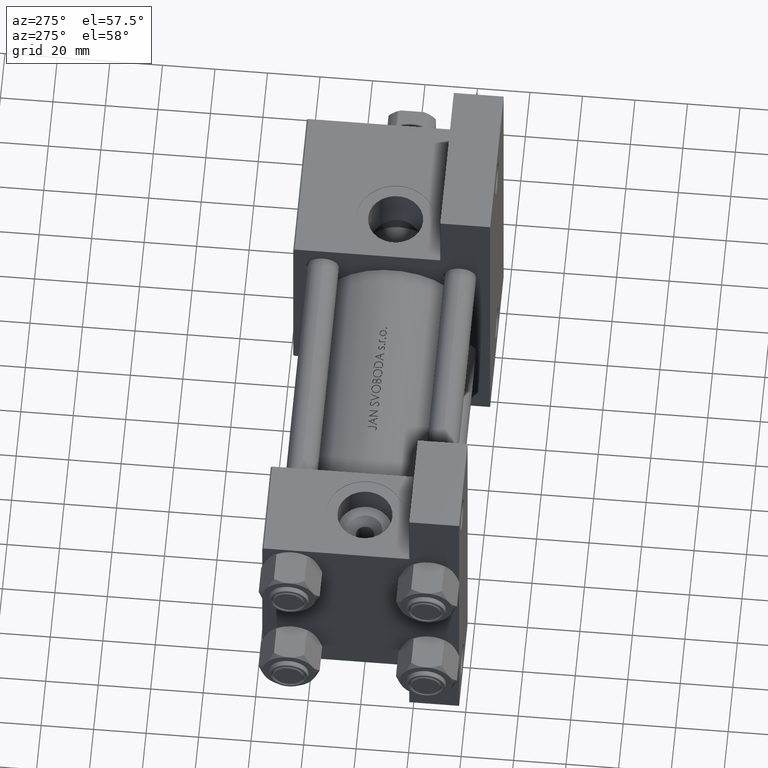
[diagram: clean part render]
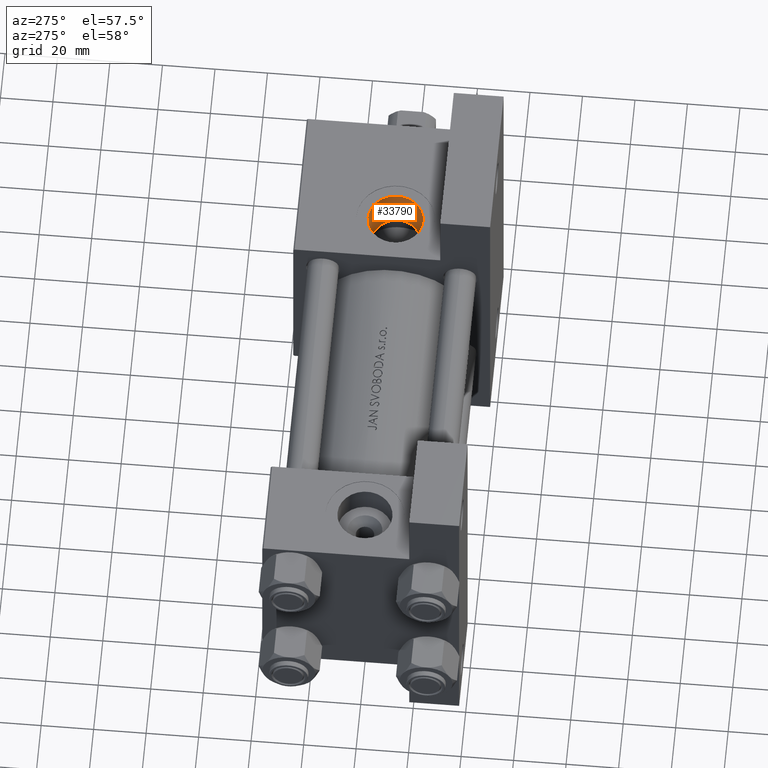
[diagram: same view with one face highlighted and labeled with its STEP entity id]
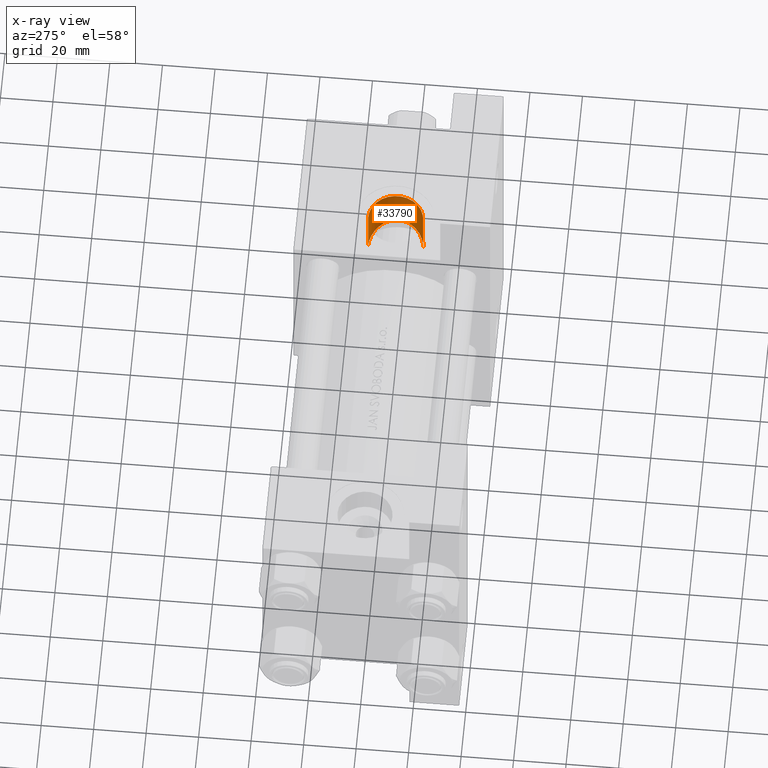
[diagram: x-ray of the same camera — body ghosted, the highlighted face saturated]
A machine part, auxiliary view. The second image highlights one B-rep face of the part: STEP entity #33790.
The next image is the same camera in x-ray: the body ghosted, the highlighted face saturated — about 0% of this face is hidden behind the body in this view.
In plain terms, the highlighted cylindrical surface (edge-blend (fillet) strip) has radius 10.48 mm, axis along (-0, -0, 1).
Its self-contained STEP definition (entity closure, byte-faithful):
#539 = CARTESIAN_POINT ( 'NONE',  ( 160.2943842801270478, -19.29805340160766747, 6.441284550439725365 ) ) ;
#1131 = VERTEX_POINT ( 'NONE', #14763 ) ;
#1438 = VERTEX_POINT ( 'NONE', #7166 ) ;
#1483 = CARTESIAN_POINT ( 'NONE',  ( 158.9416544847751993, -19.13207627753017093, -7.880695095096321268 ) ) ;
#2390 = EDGE_CURVE ( 'NONE', #10221, #1131, #9212, .T. ) ;
#2736 = VERTEX_POINT ( 'NONE', #40762 ) ;
#3141 = EDGE_CURVE ( 'NONE', #10221, #1438, #27462, .T. ) ;
#3786 = CARTESIAN_POINT ( 'NONE',  ( 158.9208345979154444, -18.70786800614511236, 7.898040897294844598 ) ) ;
#4030 = CARTESIAN_POINT ( 'NONE',  ( 161.3662177968320179, -19.82832408839749760, 4.713768309937338863 ) ) ;
#4521 = CARTESIAN_POINT ( 'NONE',  ( 152.3470210746793043, -17.31154528053460595, 10.47999999999999510 ) ) ;
#4762 = CARTESIAN_POINT ( 'NONE',  ( 160.9026386617618414, -19.87300753805846654, -5.539771893847126094 ) ) ;
#6123 = CIRCLE ( 'NONE', #33988, 10.47999999999998622 ) ;
#7166 = CARTESIAN_POINT ( 'NONE',  ( 152.0000000000000284, -17.90669148670408362, -10.47999999999998089 ) ) ;
#7837 = EDGE_CURVE ( 'NONE', #2736, #1131, #6123, .T. ) ;
#8492 = DIRECTION ( 'NONE',  ( -0.000000000000000000, -1.000000000000000000, -8.673617379884036705E-17 ) ) ;
#8740 = CARTESIAN_POINT ( 'NONE',  ( 152.3524141148301112, -17.90669148670408362, -10.47999999999997556 ) ) ;
#9212 = LINE ( 'NONE', #34897, #32180 ) ;
#9467 = CARTESIAN_POINT ( 'NONE',  ( 161.0783182432222134, -19.94519646484593167, -5.247152792081113404 ) ) ;
#10221 = VERTEX_POINT ( 'NONE', #22684 ) ;
#11022 = CARTESIAN_POINT ( 'NONE',  ( 157.2787600379286346, -18.12953982762253347, 9.078379935655647159 ) ) ;
#11260 = CARTESIAN_POINT ( 'NONE',  ( 162.3852102648228879, -20.41012014665353291, 1.448585321857994712 ) ) ;
#11995 = CARTESIAN_POINT ( 'NONE',  ( 162.1488622720015655, -20.39261420473474473, -2.705221023230776289 ) ) ;
#12233 = CARTESIAN_POINT ( 'NONE',  ( 156.6885837709134819, -18.47081169218747831, -9.397559365377063045 ) ) ;
#14763 = CARTESIAN_POINT ( 'NONE',  ( 152.0000000000000284, -37.29999999999999716, 10.47999999999998977 ) ) ;
#14978 = FACE_OUTER_BOUND ( 'NONE', #17946, .T. ) ;
#14998 = CARTESIAN_POINT ( 'NONE',  ( 160.8632463434475710, -19.57285682509593272, 5.602446212762891342 ) ) ;
#15486 = CARTESIAN_POINT ( 'NONE',  ( 152.6954312938289604, -17.32248566803110990, 10.46281023584331393 ) ) ;
#15733 = CARTESIAN_POINT ( 'NONE',  ( 161.5136165929028209, -19.90621515629138827, 4.408684660160838042 ) ) ;
#15946 = CYLINDRICAL_SURFACE ( 'NONE', #28412, 10.47999999999998622 ) ;
#16746 = LINE ( 'NONE', #36429, #48058 ) ;
#17946 = EDGE_LOOP ( 'NONE', ( #32492, #28918, #35444, #27444 ) ) ;
#18314 = DIRECTION ( 'NONE',  ( 0.000000000000000000, 0.000000000000000000, -1.000000000000000000 ) ) ;
#18984 = CARTESIAN_POINT ( 'NONE',  ( 162.4015008588858962, -20.48626732390679805, -1.327331865308766901 ) ) ;
#19223 = CARTESIAN_POINT ( 'NONE',  ( 161.9112922687107528, -20.12166452589491428, 3.472274471029884957 ) ) ;
#19720 = CARTESIAN_POINT ( 'NONE',  ( 161.9485359727863738, -20.30891902702526153, -3.366903607565236989 ) ) ;
#21311 = DIRECTION ( 'NONE',  ( 0.000000000000000000, -1.000000000000000000, -8.673617379884036705E-17 ) ) ;
#22013 = EDGE_CURVE ( 'NONE', #1438, #2736, #16746, .T. ) ;
#22684 = CARTESIAN_POINT ( 'NONE',  ( 152.0000000000000284, -17.31154528053461306, 10.47999999999999154 ) ) ;
#23455 = CARTESIAN_POINT ( 'NONE',  ( 162.4583245133797504, -20.46430137750835954, 0.7579182357777466406 ) ) ;
#23923 = CARTESIAN_POINT ( 'NONE',  ( 160.5247630629396838, -19.72096722719661344, -6.105281524917115732 ) ) ;
#24155 = CARTESIAN_POINT ( 'NONE',  ( 159.6611621740133842, -19.38999619374664363, -7.159076384942104632 ) ) ;
#24399 = CARTESIAN_POINT ( 'NONE',  ( 161.5516556862485800, -20.14238090880650134, -4.326202217588882348 ) ) ;
#24783 = CARTESIAN_POINT ( 'NONE',  ( 152.0000000000000284, -37.29999999999999716, 3.486794186713383443E-15 ) ) ;
#26455 = CARTESIAN_POINT ( 'NONE',  ( 162.4776551375226177, -20.48265569949337461, 0.4117595292702391774 ) ) ;
#26952 = CARTESIAN_POINT ( 'NONE',  ( 161.0415136392023783, -19.66186875787549226, 5.310054482731721315 ) ) ;
#27420 = CARTESIAN_POINT ( 'NONE',  ( 154.7750123670571440, -18.09812027575558702, -10.12979723076933425 ) ) ;
#27444 = ORIENTED_EDGE ( 'NONE', *, *, #7837, .T. ) ;
#27462 = B_SPLINE_CURVE_WITH_KNOTS ( 'NONE', 3,
 ( #38641, #4521, #15486, #45135, #45623, #34659, #33924, #42129, #11022, #29945, #3786, #38387, #539, #14998, #26952, #4030, #15733, #19223, #45381, #30928, #11260, #23455, #26455, #41633, #46112, #18984, #34170, #11995, #19720, #24399, #27893, #9467, #4762, #23923, #31157, #35848, #24155, #1483, #39357, #43328, #12233, #35375, #27420, #39604, #46833, #35139, #8740, #39119 ),
 .UNSPECIFIED., .F., .F.,
 ( 4, 2, 2, 2, 2, 2, 2, 2, 2, 2, 2, 2, 2, 2, 2, 2, 2, 2, 2, 2, 2, 2, 2, 4 ),
 ( 0.03337172289375579803, 0.03441233523662728944, 0.03545294757949878778, 0.03753417226524177058, 0.03961539695098476033, 0.04169662163672774313, 0.04377784632247073981, 0.04481845866534223122, 0.04585907100821372262, 0.04794029569395671930, 0.04898090803682821071, 0.05002152037969970211, 0.05106213272257120045, 0.05210274506544269879, 0.05418396975118568160, 0.05522458209405717994, 0.05626519443692867134, 0.05730580677980016968, 0.05834641912267166108, 0.06042764380841469940, 0.06250886849415773772, 0.06459009317990078991, 0.06563070552277235070, 0.06667131786564391149 ),
 .UNSPECIFIED. ) ;
#27893 = CARTESIAN_POINT ( 'NONE',  ( 161.4025389929008725, -20.07976061505709708, -4.641199740976985844 ) ) ;
#28412 = AXIS2_PLACEMENT_3D ( 'NONE', #31137, #33902, #46325 ) ;
#28918 = ORIENTED_EDGE ( 'NONE', *, *, #3141, .T. ) ;
#29945 = CARTESIAN_POINT ( 'NONE',  ( 158.3953719826940016, -18.50579674927558571, 8.329556230503516900 ) ) ;
#30928 = CARTESIAN_POINT ( 'NONE',  ( 162.3311065042815642, -20.37409322011633606, 1.794586109409245456 ) ) ;
#31137 = CARTESIAN_POINT ( 'NONE',  ( 152.0000000000000284, 37.50100000000000477, 9.974746723040443104E-15 ) ) ;
#31157 = CARTESIAN_POINT ( 'NONE',  ( 160.3225662003738421, -19.64111042044597966, -6.378170050295204341 ) ) ;
#32180 = VECTOR ( 'NONE', #8492, 1000.000000000000000 ) ;
#32492 = ORIENTED_EDGE ( 'NONE', *, *, #2390, .F. ) ;
#32691 = DIRECTION ( 'NONE',  ( -0.000000000000000000, -1.000000000000000000, -8.673617379884036705E-17 ) ) ;
#33790 = ADVANCED_FACE ( 'NONE', ( #14978 ), #15946, .F. ) ;
#33902 = DIRECTION ( 'NONE',  ( -0.000000000000000000, -1.000000000000000000, -8.673617379884036705E-17 ) ) ;
#33924 = CARTESIAN_POINT ( 'NONE',  ( 155.4159050215026525, -17.65012615064442869, 9.931528811289364711 ) ) ;
#33988 = AXIS2_PLACEMENT_3D ( 'NONE', #24783, #21311, #18314 ) ;
#34170 = CARTESIAN_POINT ( 'NONE',  ( 162.3507038963578850, -20.46901633175582447, -1.677836523642098010 ) ) ;
#34659 = CARTESIAN_POINT ( 'NONE',  ( 154.7588417203788538, -17.52693762274574851, 10.13402779325157077 ) ) ;
#34897 = CARTESIAN_POINT ( 'NONE',  ( 152.0000000000000284, 37.50100000000000477, 10.47999999999999687 ) ) ;
#35139 = CARTESIAN_POINT ( 'NONE',  ( 152.7047145583875363, -17.91665127801143953, -10.46219065497899692 ) ) ;
#35375 = CARTESIAN_POINT ( 'NONE',  ( 155.4291236246859000, -18.20648317701849095, -9.926633415679276595 ) ) ;
#35444 = ORIENTED_EDGE ( 'NONE', *, *, #22013, .T. ) ;
#35848 = CARTESIAN_POINT ( 'NONE',  ( 159.8913372837819793, -19.47582360453931116, -6.904560610471913940 ) ) ;
#36429 = CARTESIAN_POINT ( 'NONE',  ( 152.0000000000000284, 37.50100000000000477, -10.47999999999997556 ) ) ;
#38387 = CARTESIAN_POINT ( 'NONE',  ( 159.8679744497729303, -19.10325731143032968, 6.954996736502839561 ) ) ;
#38641 = CARTESIAN_POINT ( 'NONE',  ( 152.0000000000000284, -17.31154528053461306, 10.47999999999999154 ) ) ;
#39119 = CARTESIAN_POINT ( 'NONE',  ( 152.0000000000000284, -17.90669148670408362, -10.47999999999998089 ) ) ;
#39357 = CARTESIAN_POINT ( 'NONE',  ( 158.4217440813015401, -18.95863385658994815, -8.309672003124298101 ) ) ;
#39604 = CARTESIAN_POINT ( 'NONE',  ( 153.7534701870718834, -17.98521153983802634, -10.33810977386607100 ) ) ;
#40762 = CARTESIAN_POINT ( 'NONE',  ( 152.0000000000000284, -37.29999999999999716, -10.47999999999998266 ) ) ;
#41633 = CARTESIAN_POINT ( 'NONE',  ( 162.4819445000526059, -20.50178181377810915, -0.2822101851753042179 ) ) ;
#42129 = CARTESIAN_POINT ( 'NONE',  ( 156.6848851208464168, -17.95378683072778259, 9.399761861338273405 ) ) ;
#43328 = CARTESIAN_POINT ( 'NONE',  ( 157.2983228447828594, -18.62849765410346947, -9.067371222007592380 ) ) ;
#45135 = CARTESIAN_POINT ( 'NONE',  ( 153.3951252308203550, -17.36667489365846606, 10.39267281819420319 ) ) ;
#45381 = CARTESIAN_POINT ( 'NONE',  ( 162.1175830810126115, -20.24111318549747551, 2.820020607438576743 ) ) ;
#45623 = CARTESIAN_POINT ( 'NONE',  ( 153.7410054315664070, -17.39963274831551132, 10.34017078318249361 ) ) ;
#46112 = CARTESIAN_POINT ( 'NONE',  ( 162.4669051482525219, -20.50255402113294068, -0.6300211231001662249 ) ) ;
#46325 = DIRECTION ( 'NONE',  ( 0.000000000000000000, 0.000000000000000000, -1.000000000000000000 ) ) ;
#46833 = CARTESIAN_POINT ( 'NONE',  ( 153.4044395936603564, -17.95581939429250085, -10.39141979412303840 ) ) ;
#48058 = VECTOR ( 'NONE', #32691, 1000.000000000000000 ) ;